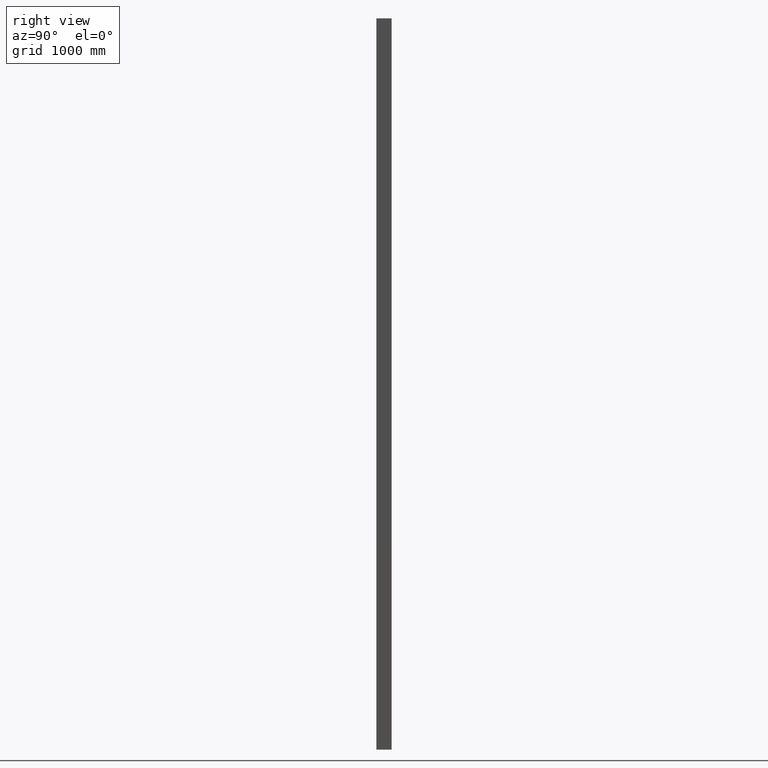
[diagram: clean part render]
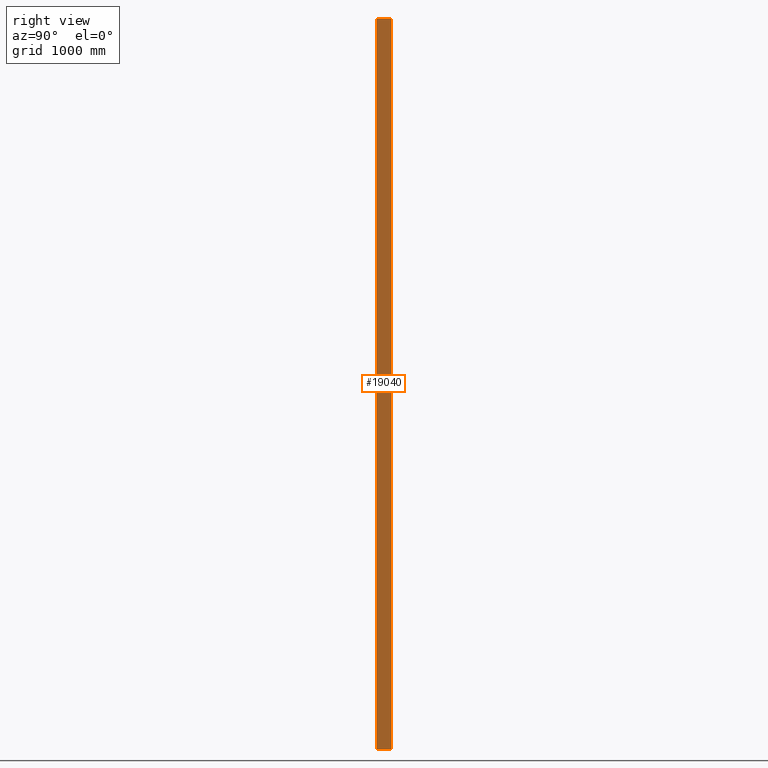
[diagram: same view with one face highlighted and labeled with its STEP entity id]
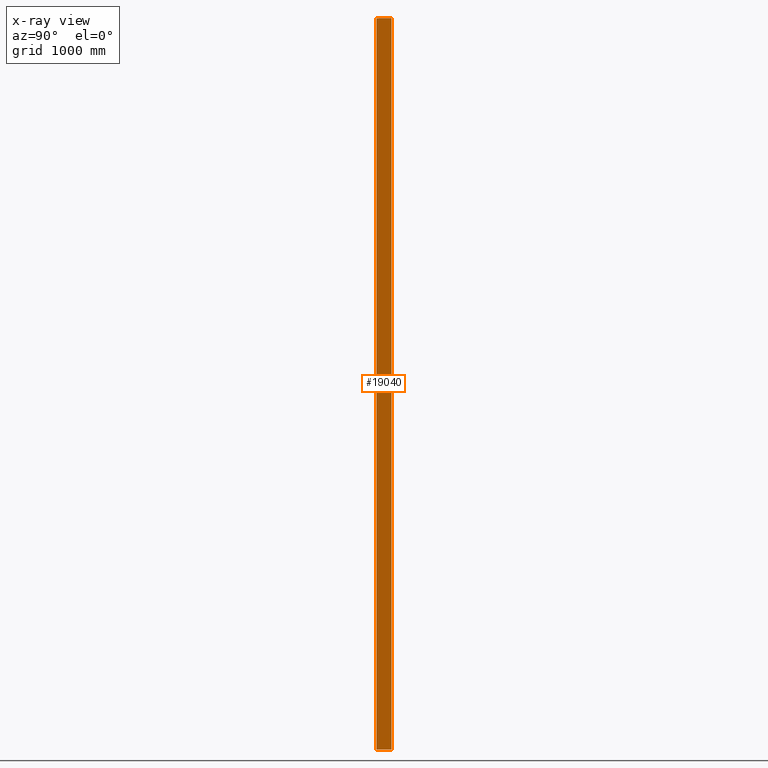
[diagram: x-ray of the same camera — body ghosted, the highlighted face saturated]
A machine part, right view. The second image highlights one B-rep face of the part: STEP entity #19040.
The next image is the same camera in x-ray: the body ghosted, the highlighted face saturated — about 0% of this face is hidden behind the body in this view.
In plain terms, the highlighted planar face has unit normal (-1, -0, 0).
Its self-contained STEP definition (entity closure, byte-faithful):
#4 = ORIENTED_EDGE ( 'NONE', *, *, #20627, .F. ) ;
#1389 = CARTESIAN_POINT ( 'NONE',  ( 23.50000000000000000, 0.0000000000000000000, 3000.000000000000000 ) ) ;
#2029 = ORIENTED_EDGE ( 'NONE', *, *, #15854, .T. ) ;
#3809 = VECTOR ( 'NONE', #17192, 1000.000000000000000 ) ;
#4382 = DIRECTION ( 'NONE',  ( -0.0000000000000000000, -0.0000000000000000000, -1.000000000000000000 ) ) ;
#4890 = ORIENTED_EDGE ( 'NONE', *, *, #6498, .T. ) ;
#5247 = DIRECTION ( 'NONE',  ( -0.0000000000000000000, -0.0000000000000000000, -1.000000000000000000 ) ) ;
#5963 = LINE ( 'NONE', #27533, #9701 ) ;
#6498 = EDGE_CURVE ( 'NONE', #13137, #13394, #17469, .T. ) ;
#7056 = LINE ( 'NONE', #9032, #22749 ) ;
#9032 = CARTESIAN_POINT ( 'NONE',  ( 23.49999999999996800, 124.9999999999998900, 3000.000000000000000 ) ) ;
#9519 = CARTESIAN_POINT ( 'NONE',  ( 23.49999999999996800, 124.9999999999998900, -3000.000000000000000 ) ) ;
#9701 = VECTOR ( 'NONE', #20942, 1000.000000000000000 ) ;
#9954 = VECTOR ( 'NONE', #4382, 1000.000000000000000 ) ;
#10498 = DIRECTION ( 'NONE',  ( 2.498001805406604200E-016, -1.000000000000000000, 0.0000000000000000000 ) ) ;
#11271 = LINE ( 'NONE', #27954, #3809 ) ;
#13137 = VERTEX_POINT ( 'NONE', #1389 ) ;
#13242 = FACE_OUTER_BOUND ( 'NONE', #24987, .T. ) ;
#13394 = VERTEX_POINT ( 'NONE', #16405 ) ;
#13773 = AXIS2_PLACEMENT_3D ( 'NONE', #25334, #25682, #10498 ) ;
#15854 = EDGE_CURVE ( 'NONE', #13394, #16653, #11271, .T. ) ;
#16405 = CARTESIAN_POINT ( 'NONE',  ( 23.50000000000000000, 0.0000000000000000000, -3000.000000000000000 ) ) ;
#16653 = VERTEX_POINT ( 'NONE', #9519 ) ;
#17004 = CARTESIAN_POINT ( 'NONE',  ( 23.49999999999996800, 124.9999999999998900, 3000.000000000000000 ) ) ;
#17192 = DIRECTION ( 'NONE',  ( -2.498001805406604200E-016, 1.000000000000000000, 0.0000000000000000000 ) ) ;
#17316 = VERTEX_POINT ( 'NONE', #17004 ) ;
#17469 = LINE ( 'NONE', #24105, #9954 ) ;
#19040 = ADVANCED_FACE ( 'NONE', ( #13242 ), #19093, .F. ) ;
#19093 = PLANE ( 'NONE',  #13773 ) ;
#20627 = EDGE_CURVE ( 'NONE', #17316, #16653, #7056, .T. ) ;
#20942 = DIRECTION ( 'NONE',  ( -2.498001805406604200E-016, 1.000000000000000000, 0.0000000000000000000 ) ) ;
#22749 = VECTOR ( 'NONE', #5247, 1000.000000000000000 ) ;
#23002 = EDGE_CURVE ( 'NONE', #13137, #17316, #5963, .T. ) ;
#23942 = ORIENTED_EDGE ( 'NONE', *, *, #23002, .F. ) ;
#24105 = CARTESIAN_POINT ( 'NONE',  ( 23.50000000000000000, 0.0000000000000000000, 3000.000000000000000 ) ) ;
#24987 = EDGE_LOOP ( 'NONE', ( #2029, #4, #23942, #4890 ) ) ;
#25334 = CARTESIAN_POINT ( 'NONE',  ( 23.50000000000000000, 5.870304242705519900E-015, 3000.000000000000000 ) ) ;
#25682 = DIRECTION ( 'NONE',  ( -1.000000000000000000, -2.498001805406604200E-016, 0.0000000000000000000 ) ) ;
#27533 = CARTESIAN_POINT ( 'NONE',  ( 23.50000000000000000, 5.870304242705519900E-015, 3000.000000000000000 ) ) ;
#27954 = CARTESIAN_POINT ( 'NONE',  ( 23.50000000000000000, 5.870304242705519900E-015, -3000.000000000000000 ) ) ;